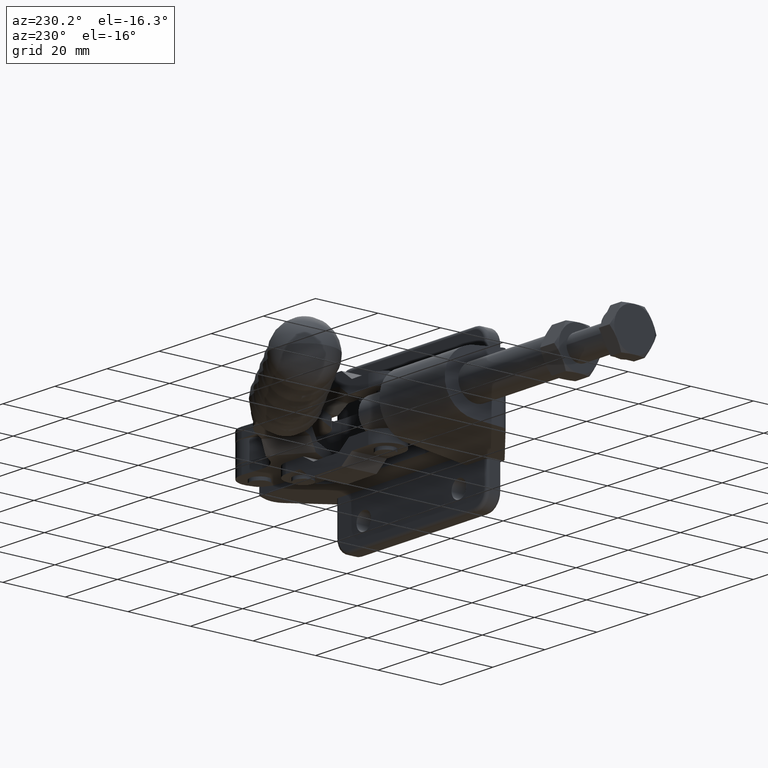
[diagram: clean part render]
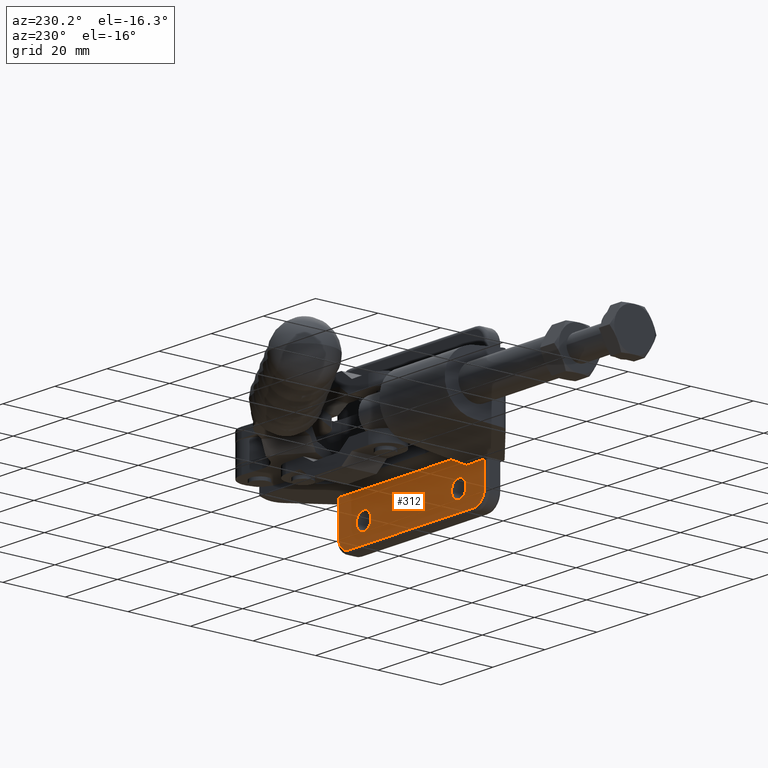
[diagram: same view with one face highlighted and labeled with its STEP entity id]
A machine part, auxiliary view. The second image highlights one B-rep face of the part: STEP entity #312.
In plain terms, the highlighted planar face has unit normal (0, 1, 0).
Its self-contained STEP definition (entity closure, byte-faithful):
#75 = EDGE_CURVE ( 'NONE', #11458, #706, #1879, .T. ) ;
#119 = EDGE_CURVE ( 'NONE', #10402, #4787, #4025, .T. ) ;
#195 = ORIENTED_EDGE ( 'NONE', *, *, #4776, .T. ) ;
#248 = CARTESIAN_POINT ( 'NONE',  ( 31.25000000000028400, 4.799999999999915400, -16.64999999999991300 ) ) ;
#250 = ORIENTED_EDGE ( 'NONE', *, *, #4617, .T. ) ;
#312 = ADVANCED_FACE ( 'NONE', ( #3863, #11263, #11554 ), #9190, .T. ) ;
#429 = AXIS2_PLACEMENT_3D ( 'NONE', #5072, #11536, #5992 ) ;
#596 = ORIENTED_EDGE ( 'NONE', *, *, #10657, .T. ) ;
#612 = EDGE_CURVE ( 'NONE', #11458, #11648, #5923, .T. ) ;
#688 = DIRECTION ( 'NONE',  ( 1.000000000000000000, -1.292711664340275900E-030, 7.561453656396412000E-017 ) ) ;
#706 = VERTEX_POINT ( 'NONE', #10704 ) ;
#971 = VECTOR ( 'NONE', #1872, 1000.000000000000000 ) ;
#1031 = CARTESIAN_POINT ( 'NONE',  ( 92.50000000000000000, 4.799999999999823100, -11.26856399447731900 ) ) ;
#1061 = DIRECTION ( 'NONE',  ( 0.0000000000000000000, 1.000000000000000000, 1.709607336212052900E-014 ) ) ;
#1198 = DIRECTION ( 'NONE',  ( 0.0000000000000000000, 1.703746271048653800E-014, -1.000000000000000000 ) ) ;
#1299 = VECTOR ( 'NONE', #4795, 1000.000000000000000 ) ;
#1681 = CARTESIAN_POINT ( 'NONE',  ( 21.50000000000027000, 4.799999999999823100, -11.26856399447731900 ) ) ;
#1733 = VERTEX_POINT ( 'NONE', #9358 ) ;
#1853 = DIRECTION ( 'NONE',  ( 0.0000000000000000000, 1.709607336212052900E-014, -1.000000000000000000 ) ) ;
#1872 = DIRECTION ( 'NONE',  ( 0.0000000000000000000, -1.709607336212052900E-014, 1.000000000000000000 ) ) ;
#1879 = LINE ( 'NONE', #3870, #6499 ) ;
#1962 = DIRECTION ( 'NONE',  ( 0.0000000000000000000, 1.000000000000000000, 1.709607336212052900E-014 ) ) ;
#2039 = ORIENTED_EDGE ( 'NONE', *, *, #11003, .T. ) ;
#3293 = CIRCLE ( 'NONE', #9709, 2.799999999999993600 ) ;
#3430 = CARTESIAN_POINT ( 'NONE',  ( 77.50000000000000000, 4.800000000000038000, -23.80000000000007500 ) ) ;
#3448 = VECTOR ( 'NONE', #11121, 1000.000000000000000 ) ;
#3485 = ORIENTED_EDGE ( 'NONE', *, *, #11673, .F. ) ;
#3560 = EDGE_CURVE ( 'NONE', #9201, #7635, #4651, .T. ) ;
#3863 = FACE_BOUND ( 'NONE', #6998, .T. ) ;
#3870 = CARTESIAN_POINT ( 'NONE',  ( 28.44314198224717700, 4.800000000000007800, -67.95000000000003100 ) ) ;
#3957 = CARTESIAN_POINT ( 'NONE',  ( 92.50000000000000000, 4.800000000000020300, -22.80000000000002600 ) ) ;
#4025 = LINE ( 'NONE', #3430, #1299 ) ;
#4045 = CARTESIAN_POINT ( 'NONE',  ( 92.50000000000000000, 4.800000000000038000, -23.80000000000007500 ) ) ;
#4051 = EDGE_LOOP ( 'NONE', ( #10089, #3485 ) ) ;
#4098 = CARTESIAN_POINT ( 'NONE',  ( 28.44314198224717700, 4.800000000000007800, -11.26856399447733600 ) ) ;
#4175 = VECTOR ( 'NONE', #4892, 1000.000000000000000 ) ;
#4263 = CIRCLE ( 'NONE', #6023, 2.799999999999993600 ) ;
#4415 = CIRCLE ( 'NONE', #9591, 2.799999999999993600 ) ;
#4534 = DIRECTION ( 'NONE',  ( 0.0000000000000000000, 1.000000000000000000, 1.709607336212052900E-014 ) ) ;
#4607 = CARTESIAN_POINT ( 'NONE',  ( 21.50000000000027000, 4.800000000000038000, -23.80000000000007500 ) ) ;
#4617 = EDGE_CURVE ( 'NONE', #4787, #10086, #5324, .T. ) ;
#4651 = CIRCLE ( 'NONE', #7634, 2.799999999999993600 ) ;
#4776 = EDGE_CURVE ( 'NONE', #10086, #10356, #6346, .T. ) ;
#4787 = VERTEX_POINT ( 'NONE', #11376 ) ;
#4795 = DIRECTION ( 'NONE',  ( 0.0000000000000000000, 1.709607336212052900E-014, -1.000000000000000000 ) ) ;
#4892 = DIRECTION ( 'NONE',  ( -1.000000000000000000, 0.0000000000000000000, 0.0000000000000000000 ) ) ;
#5055 = VERTEX_POINT ( 'NONE', #7116 ) ;
#5072 = CARTESIAN_POINT ( 'NONE',  ( 25.50000000000027400, 4.799999999999951900, -18.80000000000002600 ) ) ;
#5074 = DIRECTION ( 'NONE',  ( 0.0000000000000000000, 1.000000000000000000, 1.709607336212052900E-014 ) ) ;
#5324 = CIRCLE ( 'NONE', #6885, 4.000000000000000000 ) ;
#5923 = LINE ( 'NONE', #1031, #3448 ) ;
#5992 = DIRECTION ( 'NONE',  ( 0.0000000000000000000, 1.713039432527097000E-014, -1.000000000000000000 ) ) ;
#6023 = AXIS2_PLACEMENT_3D ( 'NONE', #10056, #4534, #11004 ) ;
#6101 = CARTESIAN_POINT ( 'NONE',  ( 67.75000000000028400, 4.799999999999867500, -13.84999999999992100 ) ) ;
#6242 = EDGE_CURVE ( 'NONE', #7635, #9201, #4415, .T. ) ;
#6346 = LINE ( 'NONE', #3957, #4175 ) ;
#6415 = ORIENTED_EDGE ( 'NONE', *, *, #3560, .F. ) ;
#6499 = VECTOR ( 'NONE', #11626, 1000.000000000000000 ) ;
#6599 = CARTESIAN_POINT ( 'NONE',  ( 67.75000000000028400, 4.799999999999915400, -16.64999999999991300 ) ) ;
#6727 = DIRECTION ( 'NONE',  ( 0.0000000000000000000, 1.000000000000000000, 1.709607336212052900E-014 ) ) ;
#6734 = CARTESIAN_POINT ( 'NONE',  ( 67.75000000000028400, 4.799999999999963400, -19.44999999999990700 ) ) ;
#6885 = AXIS2_PLACEMENT_3D ( 'NONE', #7479, #1962, #8430 ) ;
#6923 = EDGE_LOOP ( 'NONE', ( #2039, #10243, #250, #195, #11420, #596, #6944, #7050 ) ) ;
#6944 = ORIENTED_EDGE ( 'NONE', *, *, #612, .F. ) ;
#6998 = EDGE_LOOP ( 'NONE', ( #7927, #6415 ) ) ;
#7050 = ORIENTED_EDGE ( 'NONE', *, *, #75, .T. ) ;
#7116 = CARTESIAN_POINT ( 'NONE',  ( 21.50000000000027400, 4.799999999999951900, -18.80000000000002600 ) ) ;
#7479 = CARTESIAN_POINT ( 'NONE',  ( 73.50000000000000000, 4.799999999999951900, -18.80000000000002600 ) ) ;
#7513 = DIRECTION ( 'NONE',  ( 0.0000000000000000000, 1.703746271048653800E-014, -1.000000000000000000 ) ) ;
#7635 = VERTEX_POINT ( 'NONE', #6734 ) ;
#7634 = AXIS2_PLACEMENT_3D ( 'NONE', #6599, #1061, #7513 ) ;
#7768 = CARTESIAN_POINT ( 'NONE',  ( 31.25000000000028400, 4.799999999999963400, -19.44999999999990700 ) ) ;
#7927 = ORIENTED_EDGE ( 'NONE', *, *, #6242, .F. ) ;
#8135 = VERTEX_POINT ( 'NONE', #7768 ) ;
#8310 = DIRECTION ( 'NONE',  ( 0.0000000000000000000, 1.000000000000000000, 1.709607336212052900E-014 ) ) ;
#8430 = DIRECTION ( 'NONE',  ( 0.0000000000000000000, 1.713039432527097000E-014, -1.000000000000000000 ) ) ;
#8658 = EDGE_CURVE ( 'NONE', #10356, #5055, #11328, .T. ) ;
#8776 = CARTESIAN_POINT ( 'NONE',  ( 77.50000000000000000, 4.799999999999777800, -8.579918377386947600 ) ) ;
#8862 = CARTESIAN_POINT ( 'NONE',  ( 25.50000000000027400, 4.800000000000020300, -22.80000000000002600 ) ) ;
#9190 = PLANE ( 'NONE',  #10005 ) ;
#9201 = VERTEX_POINT ( 'NONE', #6101 ) ;
#9333 = VECTOR ( 'NONE', #688, 1000.000000000000000 ) ;
#9358 = CARTESIAN_POINT ( 'NONE',  ( 31.25000000000028400, 4.799999999999867500, -13.84999999999992100 ) ) ;
#9461 = CARTESIAN_POINT ( 'NONE',  ( 73.50000000000000000, 4.800000000000020300, -22.80000000000002600 ) ) ;
#9488 = LINE ( 'NONE', #4607, #971 ) ;
#9591 = AXIS2_PLACEMENT_3D ( 'NONE', #10590, #5074, #11538 ) ;
#9709 = AXIS2_PLACEMENT_3D ( 'NONE', #248, #6727, #1198 ) ;
#9873 = CARTESIAN_POINT ( 'NONE',  ( 35.51047661171096300, 4.799999999999777800, -8.579918377386951200 ) ) ;
#10005 = AXIS2_PLACEMENT_3D ( 'NONE', #4045, #8310, #1853 ) ;
#10056 = CARTESIAN_POINT ( 'NONE',  ( 31.25000000000028400, 4.799999999999915400, -16.64999999999991300 ) ) ;
#10086 = VERTEX_POINT ( 'NONE', #9461 ) ;
#10089 = ORIENTED_EDGE ( 'NONE', *, *, #10094, .F. ) ;
#10094 = EDGE_CURVE ( 'NONE', #8135, #1733, #3293, .T. ) ;
#10243 = ORIENTED_EDGE ( 'NONE', *, *, #119, .T. ) ;
#10356 = VERTEX_POINT ( 'NONE', #8862 ) ;
#10402 = VERTEX_POINT ( 'NONE', #8776 ) ;
#10590 = CARTESIAN_POINT ( 'NONE',  ( 67.75000000000028400, 4.799999999999915400, -16.64999999999991300 ) ) ;
#10657 = EDGE_CURVE ( 'NONE', #5055, #11648, #9488, .T. ) ;
#10704 = CARTESIAN_POINT ( 'NONE',  ( 28.44314198224717700, 4.800000000000007800, -8.579918377386933400 ) ) ;
#11003 = EDGE_CURVE ( 'NONE', #706, #10402, #11800, .T. ) ;
#11004 = DIRECTION ( 'NONE',  ( 0.0000000000000000000, 1.703746271048653800E-014, -1.000000000000000000 ) ) ;
#11121 = DIRECTION ( 'NONE',  ( -1.000000000000000000, 0.0000000000000000000, 0.0000000000000000000 ) ) ;
#11263 = FACE_BOUND ( 'NONE', #4051, .T. ) ;
#11328 = CIRCLE ( 'NONE', #429, 4.000000000000000000 ) ;
#11376 = CARTESIAN_POINT ( 'NONE',  ( 77.50000000000000000, 4.799999999999951900, -18.80000000000002600 ) ) ;
#11420 = ORIENTED_EDGE ( 'NONE', *, *, #8658, .T. ) ;
#11458 = VERTEX_POINT ( 'NONE', #4098 ) ;
#11536 = DIRECTION ( 'NONE',  ( 0.0000000000000000000, 1.000000000000000000, 1.709607336212052900E-014 ) ) ;
#11538 = DIRECTION ( 'NONE',  ( 0.0000000000000000000, 1.703746271048653800E-014, -1.000000000000000000 ) ) ;
#11554 = FACE_OUTER_BOUND ( 'NONE', #6923, .T. ) ;
#11626 = DIRECTION ( 'NONE',  ( 0.0000000000000000000, 0.0000000000000000000, 1.000000000000000000 ) ) ;
#11648 = VERTEX_POINT ( 'NONE', #1681 ) ;
#11673 = EDGE_CURVE ( 'NONE', #1733, #8135, #4263, .T. ) ;
#11800 = LINE ( 'NONE', #9873, #9333 ) ;